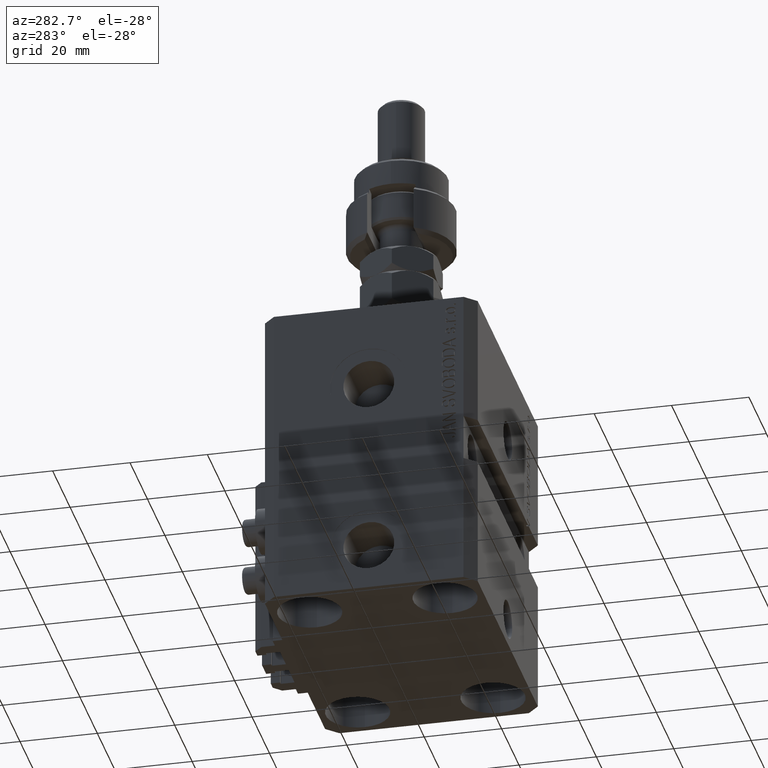
[diagram: clean part render]
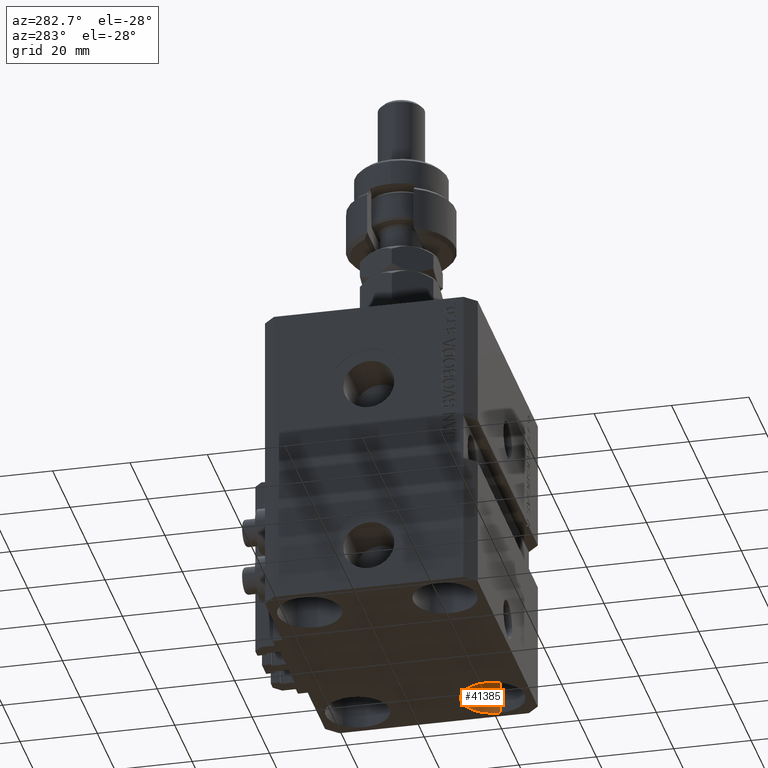
[diagram: same view with one face highlighted and labeled with its STEP entity id]
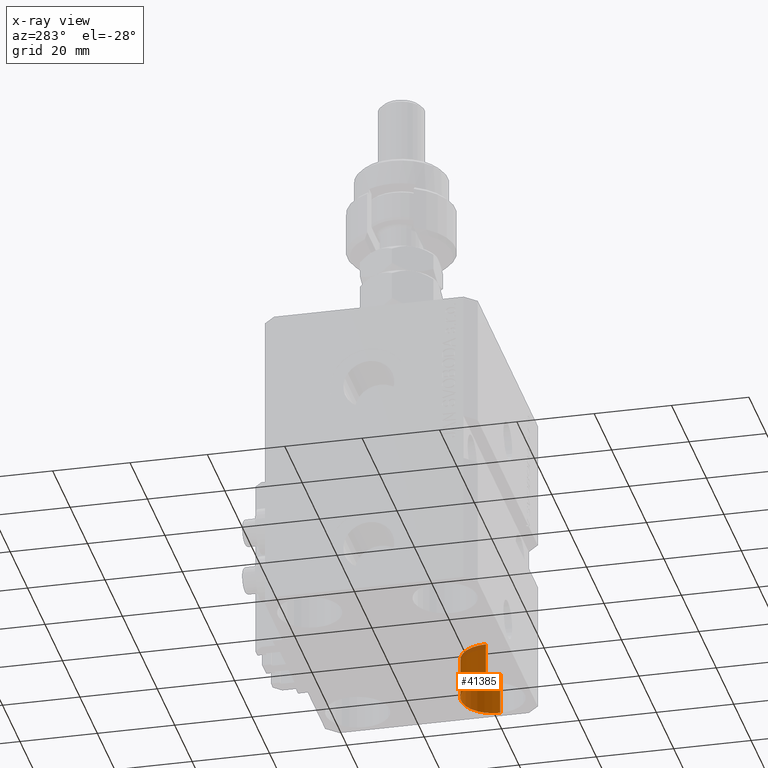
[diagram: x-ray of the same camera — body ghosted, the highlighted face saturated]
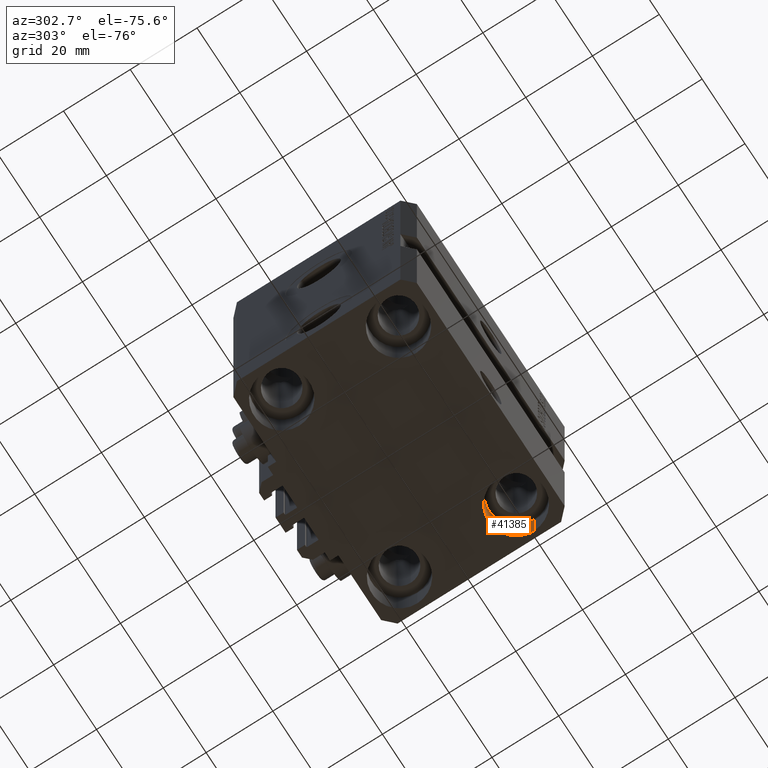
[diagram: same view with one face highlighted and labeled with its STEP entity id]
A machine part, auxiliary view. The second image highlights one B-rep face of the part: STEP entity #41385.
The next image is the same camera in x-ray: the body ghosted, the highlighted face saturated — about 9% of this face is hidden behind the body in this view.
A second angle (auxiliary view) of the same face is appended — the face is thin or edge-on in the first view.
In plain terms, the highlighted cylindrical surface (edge-blend (fillet) strip) has radius 8.25 mm, axis along (-0, -0, -1).
Its self-contained STEP definition (entity closure, byte-faithful):
#1234 = VERTEX_POINT ( 'NONE', #39091 ) ;
#1995 = CARTESIAN_POINT ( 'NONE',  ( 19.25000000000000000, -17.50000000000000000, -69.00000000000000000 ) ) ;
#3419 = CYLINDRICAL_SURFACE ( 'NONE', #27639, 8.250000000000003553 ) ;
#3554 = ORIENTED_EDGE ( 'NONE', *, *, #22547, .F. ) ;
#4984 = VERTEX_POINT ( 'NONE', #1995 ) ;
#6345 = DIRECTION ( 'NONE',  ( -0.000000000000000000, -0.000000000000000000, -1.000000000000000000 ) ) ;
#6740 = AXIS2_PLACEMENT_3D ( 'NONE', #22967, #27720, #46058 ) ;
#7907 = FACE_OUTER_BOUND ( 'NONE', #13917, .T. ) ;
#8312 = CIRCLE ( 'NONE', #6740, 8.250000000000000000 ) ;
#13515 = CARTESIAN_POINT ( 'NONE',  ( 35.75000000000000711, -17.50000000000000000, -80.00000000000000000 ) ) ;
#13917 = EDGE_LOOP ( 'NONE', ( #3554, #43579, #17940, #31269 ) ) ;
#16103 = AXIS2_PLACEMENT_3D ( 'NONE', #35898, #28378, #24601 ) ;
#17484 = LINE ( 'NONE', #25253, #26832 ) ;
#17514 = CARTESIAN_POINT ( 'NONE',  ( 35.75000000000000711, -17.50000000000000000, -69.00000000000000000 ) ) ;
#17940 = ORIENTED_EDGE ( 'NONE', *, *, #26508, .T. ) ;
#20180 = VERTEX_POINT ( 'NONE', #13515 ) ;
#21525 = EDGE_CURVE ( 'NONE', #20180, #1234, #8312, .T. ) ;
#22369 = LINE ( 'NONE', #37675, #35244 ) ;
#22547 = EDGE_CURVE ( 'NONE', #30333, #20180, #17484, .T. ) ;
#22967 = CARTESIAN_POINT ( 'NONE',  ( 27.50000000000000355, -17.50000000000000000, -80.00000000000000000 ) ) ;
#23195 = DIRECTION ( 'NONE',  ( -0.000000000000000000, -0.000000000000000000, -1.000000000000000000 ) ) ;
#24601 = DIRECTION ( 'NONE',  ( 1.000000000000000000, 0.000000000000000000, 0.000000000000000000 ) ) ;
#25253 = CARTESIAN_POINT ( 'NONE',  ( 35.75000000000000711, -17.50000000000000000, -69.00000000000000000 ) ) ;
#26508 = EDGE_CURVE ( 'NONE', #4984, #1234, #22369, .T. ) ;
#26832 = VECTOR ( 'NONE', #40331, 1000.000000000000000 ) ;
#27639 = AXIS2_PLACEMENT_3D ( 'NONE', #45548, #23195, #38516 ) ;
#27720 = DIRECTION ( 'NONE',  ( -0.000000000000000000, -0.000000000000000000, 1.000000000000000000 ) ) ;
#28378 = DIRECTION ( 'NONE',  ( -0.000000000000000000, -0.000000000000000000, 1.000000000000000000 ) ) ;
#30333 = VERTEX_POINT ( 'NONE', #17514 ) ;
#31269 = ORIENTED_EDGE ( 'NONE', *, *, #21525, .F. ) ;
#32121 = EDGE_CURVE ( 'NONE', #30333, #4984, #42551, .T. ) ;
#35244 = VECTOR ( 'NONE', #6345, 1000.000000000000000 ) ;
#35898 = CARTESIAN_POINT ( 'NONE',  ( 27.50000000000000355, -17.50000000000000000, -69.00000000000000000 ) ) ;
#37675 = CARTESIAN_POINT ( 'NONE',  ( 19.25000000000000000, -17.50000000000000000, -69.00000000000000000 ) ) ;
#38516 = DIRECTION ( 'NONE',  ( -1.000000000000000000, 0.000000000000000000, 0.000000000000000000 ) ) ;
#39091 = CARTESIAN_POINT ( 'NONE',  ( 19.25000000000000000, -17.50000000000000000, -80.00000000000000000 ) ) ;
#40331 = DIRECTION ( 'NONE',  ( -0.000000000000000000, -0.000000000000000000, -1.000000000000000000 ) ) ;
#41385 = ADVANCED_FACE ( 'NONE', ( #7907 ), #3419, .F. ) ;
#42551 = CIRCLE ( 'NONE', #16103, 8.250000000000000000 ) ;
#43579 = ORIENTED_EDGE ( 'NONE', *, *, #32121, .T. ) ;
#45548 = CARTESIAN_POINT ( 'NONE',  ( 27.50000000000000355, -17.50000000000000000, -69.00000000000000000 ) ) ;
#46058 = DIRECTION ( 'NONE',  ( 1.000000000000000000, 0.000000000000000000, 0.000000000000000000 ) ) ;